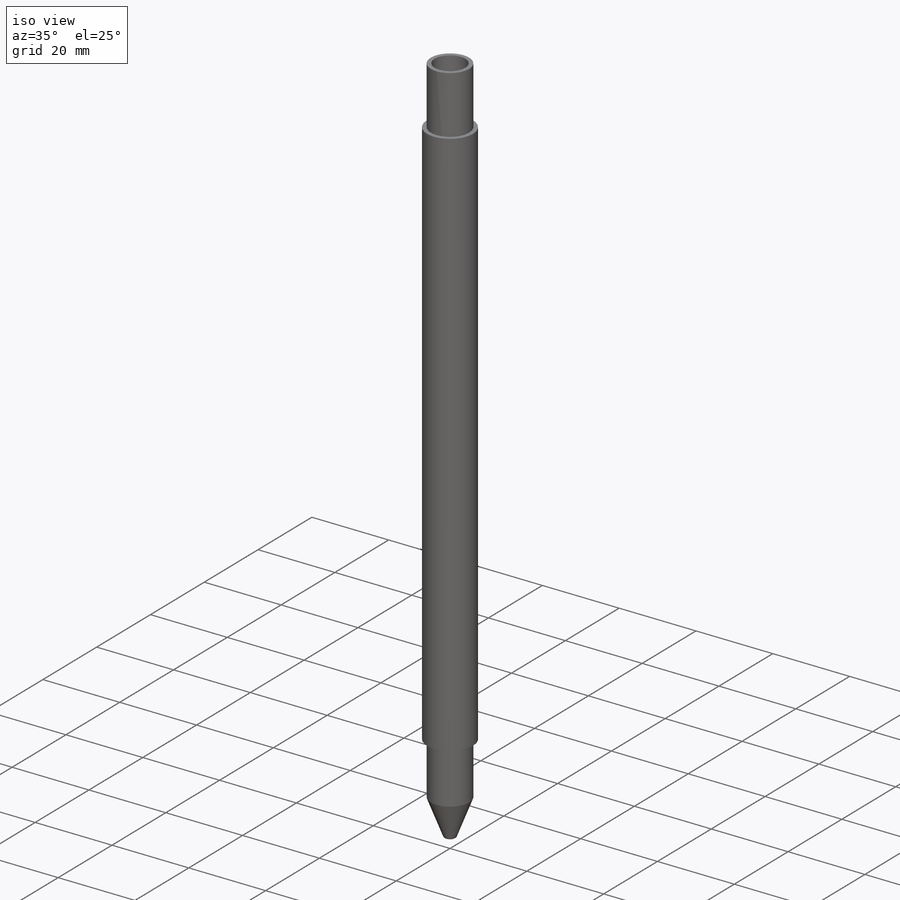
[diagram: iso view]
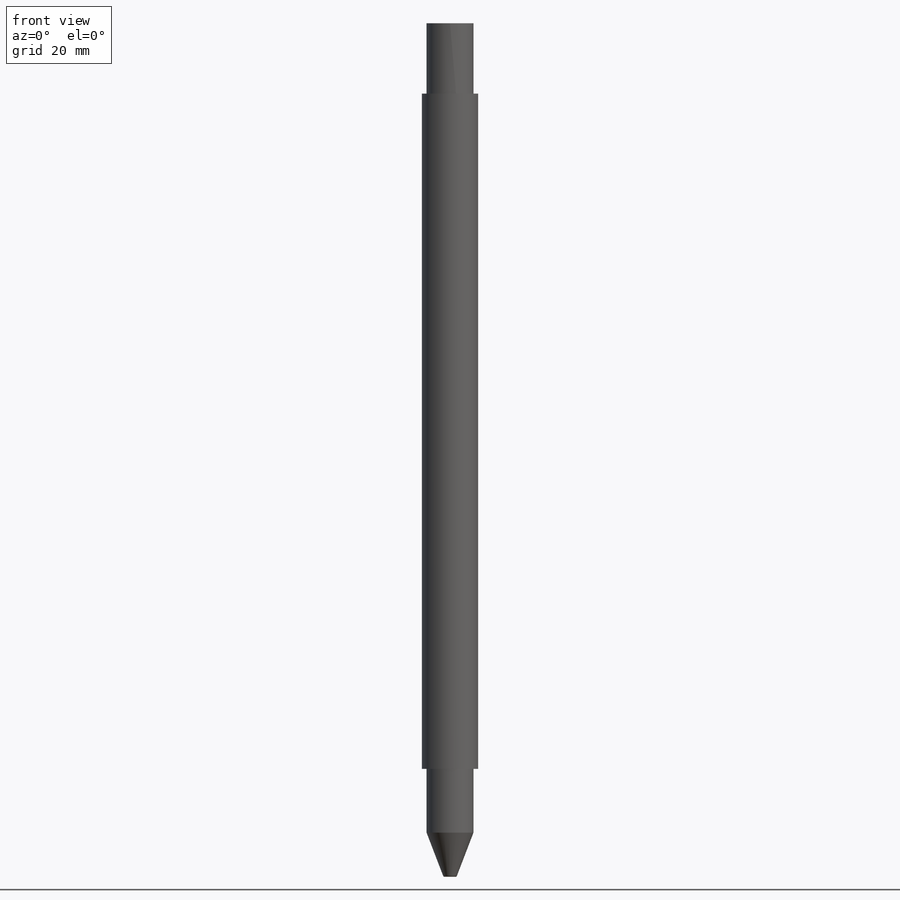
[diagram: front view]
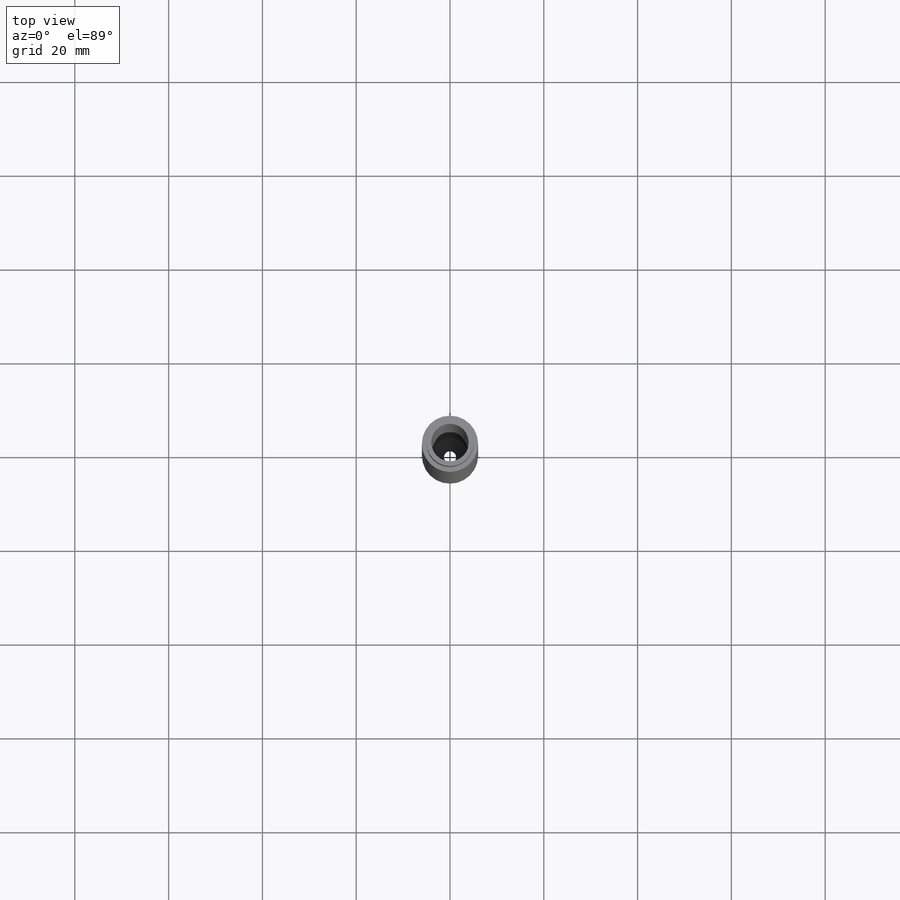
[diagram: top view]
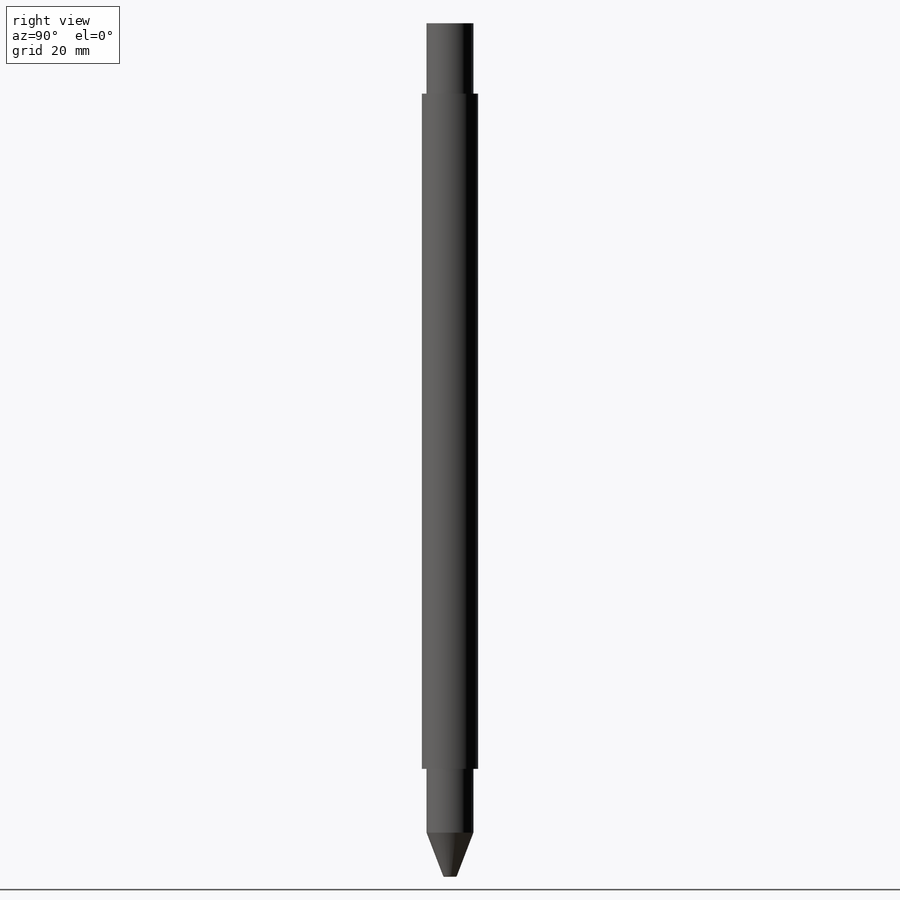
[diagram: right view]
SOLIDWORKS PART (.sldprt)
format: sldprt  version: not decoded by parser v0  size: 124,416 bytes
history: native  units: mm
features: sketch x7, cut_extrude x5, plane x4, extrude x2, material x1, fillet x1 (+12 scaffold rows collapsed)
feature tree (32):
  scaffold x12  (default folders/planes/origin — collapsed)
  material  "Material <não especificado>"
  plane  "Plano frontal"
  plane  "Plano superior"
  plane  "Plano direito"
  sketch  "Esboço1"  dims[D1=12.0mm]
  extrude  "Extrusão1"  Depth=170mm
  sketch  "Esboço3"  dims[D1=0.0mm]
  extrude  "Extrusão2"  Depth=12mm
  sketch  "Esboço4"  dims[D1=10.0mm]
  cut_extrude  "Corte-extrusão1"  Depth=15mm
  sketch  "Esboço5"  dims[D1=8.0mm]
  cut_extrude  "Corte-extrusão2"  Depth=170mm
  sketch  "Esboço6"  dims[D1=0.0mm]
  cut_extrude  "Corte-extrusão3"  Depth=10.08mm
  sketch  "Esboço7"  dims[D1=0.0mm]
  cut_extrude  "Corte-extrusão4"  [1 undecoded]
  fillet  "Filete1"  Radius=0.5mm
  plane  "Plano1"  Offset=100mm
  sketch  "Esboço8"  dims[D1=10.0mm]
  cut_extrude  "Corte-extrusão5"  Depth=26mm
decode coverage: 14 of 15 modeling features carry decoded parameters
note: 1 parameter value undecoded
note: suppression state not decoded; provenance and decode notes live in map.json
